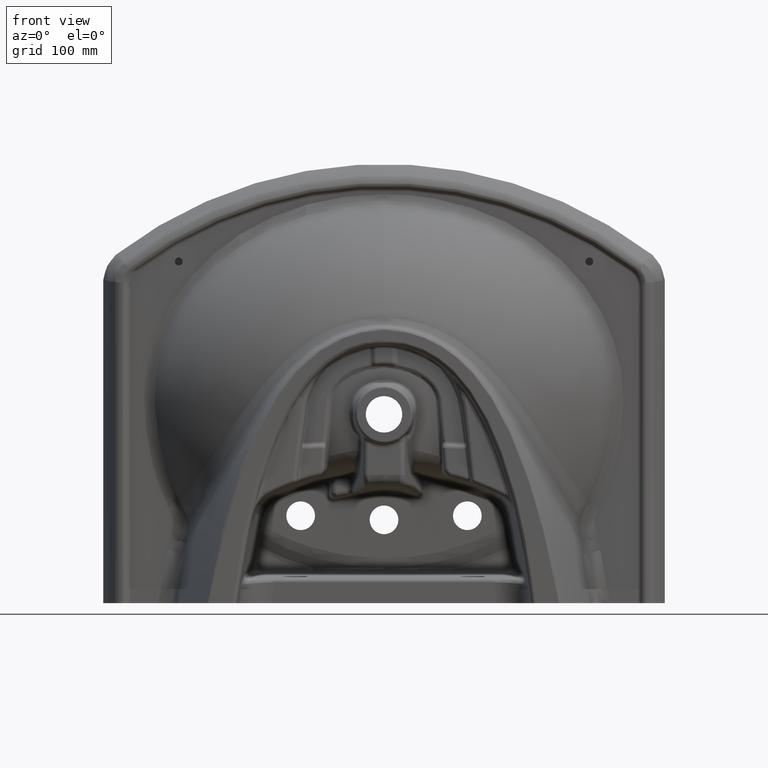
[diagram: clean part render]
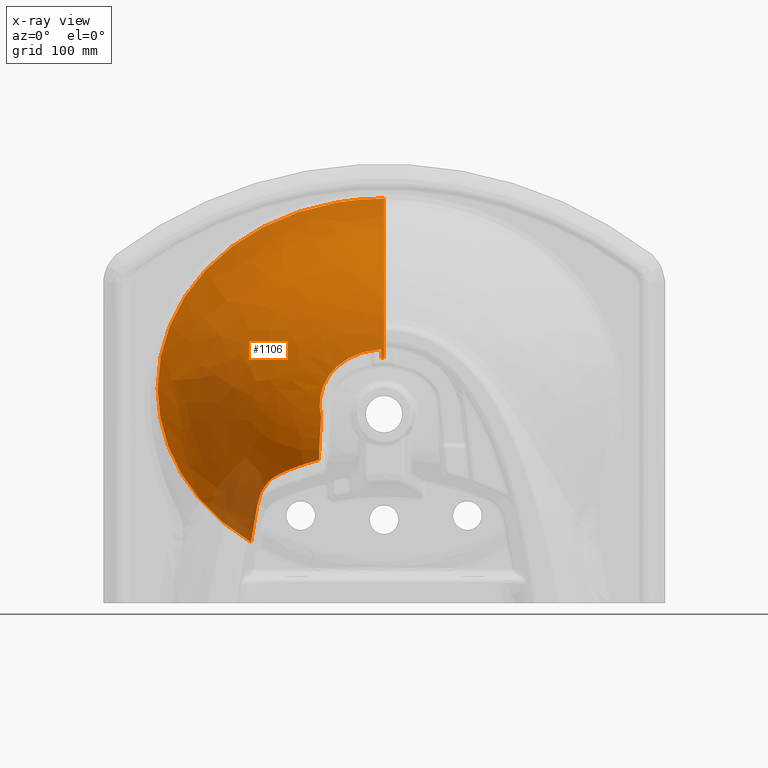
[diagram: x-ray — body ghosted, one internal face saturated and labeled with its STEP entity id]
A machine part, front view, then the same camera in x-ray: the body is ghosted and one INTERNAL B-rep face — a face not visible from any outside direction — is saturated and labeled: STEP entity #1106.
In plain terms, the highlighted face is a freeform B-spline surface patch.
Its self-contained STEP definition (entity closure, byte-faithful):
#449=(
BOUNDED_CURVE()
B_SPLINE_CURVE(3,(#10275,#10276,#10277,#10278,#10279,#10280,#10281,#10282,
#10283,#10284,#10285,#10286,#10287,#10288,#10289,#10290,#10291,#10292,#10293,
#10294,#10295,#10296,#10297,#10298,#10299,#10300,#10301,#10302,#10303,#10304,
#10305,#10306,#10307),.UNSPECIFIED.,.F.,.F.)
B_SPLINE_CURVE_WITH_KNOTS((4,1,1,1,1,1,1,1,1,1,1,1,1,1,1,1,1,1,1,1,1,1,
1,1,1,1,1,1,1,1,4),(0.,0.0224453555523785,0.0435125646434683,0.0628938435770593,
0.0821873906513526,0.101887499702686,0.121640100564984,0.141201082285744,
0.160545222206031,0.180564050673581,0.202498422622833,0.227579049221369,
0.256355493920582,0.288417060026703,0.323168919598192,0.3592852883435,0.395314984610934,
0.431073633900566,0.467039675850233,0.503575555244303,0.540922854239462,
0.57935046592357,0.619142605579174,0.660536857137993,0.703708934099004,
0.748781793215385,0.795818133369563,0.844769491808074,0.895478991219988,
0.947679556974255,1.),.UNSPECIFIED.)
CURVE()
GEOMETRIC_REPRESENTATION_ITEM()
RATIONAL_B_SPLINE_CURVE((1.00918384800764,1.00918384800764,1.00918384800764,
1.00918384800764,1.00918384800764,1.00918384800764,1.00918384800764,1.00918384800764,
1.00918384800764,1.00918384800764,1.00918384800764,1.00918384800764,1.00918384800764,
1.00918384800764,1.00918384800764,1.00918384800764,1.00918384800764,1.00918384800764,
1.00918384800764,1.00918384800764,1.00918384800764,1.00918384800764,1.00918384800764,
1.00918384800764,1.00918384800764,1.00918384800764,1.00918384800764,1.00918384800764,
1.00918384800764,1.00918384800764,1.00918384800764,1.00918384800764,1.00918384800764))
REPRESENTATION_ITEM('')
);
#1106=ADVANCED_FACE('',(#1644),#1564,.T.);
#1564=B_SPLINE_SURFACE_WITH_KNOTS('',3,3,((#10308,#10309,#10310,#10311,
#10312,#10313,#10314,#10315,#10316,#10317,#10318,#10319,#10320,#10321,#10322,
#10323,#10324,#10325),(#10326,#10327,#10328,#10329,#10330,#10331,#10332,
#10333,#10334,#10335,#10336,#10337,#10338,#10339,#10340,#10341,#10342,#10343),
(#10344,#10345,#10346,#10347,#10348,#10349,#10350,#10351,#10352,#10353,
#10354,#10355,#10356,#10357,#10358,#10359,#10360,#10361),(#10362,#10363,
#10364,#10365,#10366,#10367,#10368,#10369,#10370,#10371,#10372,#10373,#10374,
#10375,#10376,#10377,#10378,#10379),(#10380,#10381,#10382,#10383,#10384,
#10385,#10386,#10387,#10388,#10389,#10390,#10391,#10392,#10393,#10394,#10395,
#10396,#10397),(#10398,#10399,#10400,#10401,#10402,#10403,#10404,#10405,
#10406,#10407,#10408,#10409,#10410,#10411,#10412,#10413,#10414,#10415),
(#10416,#10417,#10418,#10419,#10420,#10421,#10422,#10423,#10424,#10425,
#10426,#10427,#10428,#10429,#10430,#10431,#10432,#10433),(#10434,#10435,
#10436,#10437,#10438,#10439,#10440,#10441,#10442,#10443,#10444,#10445,#10446,
#10447,#10448,#10449,#10450,#10451),(#10452,#10453,#10454,#10455,#10456,
#10457,#10458,#10459,#10460,#10461,#10462,#10463,#10464,#10465,#10466,#10467,
#10468,#10469),(#10470,#10471,#10472,#10473,#10474,#10475,#10476,#10477,
#10478,#10479,#10480,#10481,#10482,#10483,#10484,#10485,#10486,#10487),
(#10488,#10489,#10490,#10491,#10492,#10493,#10494,#10495,#10496,#10497,
#10498,#10499,#10500,#10501,#10502,#10503,#10504,#10505),(#10506,#10507,
#10508,#10509,#10510,#10511,#10512,#10513,#10514,#10515,#10516,#10517,#10518,
#10519,#10520,#10521,#10522,#10523),(#10524,#10525,#10526,#10527,#10528,
#10529,#10530,#10531,#10532,#10533,#10534,#10535,#10536,#10537,#10538,#10539,
#10540,#10541),(#10542,#10543,#10544,#10545,#10546,#10547,#10548,#10549,
#10550,#10551,#10552,#10553,#10554,#10555,#10556,#10557,#10558,#10559),
(#10560,#10561,#10562,#10563,#10564,#10565,#10566,#10567,#10568,#10569,
#10570,#10571,#10572,#10573,#10574,#10575,#10576,#10577),(#10578,#10579,
#10580,#10581,#10582,#10583,#10584,#10585,#10586,#10587,#10588,#10589,#10590,
#10591,#10592,#10593,#10594,#10595),(#10596,#10597,#10598,#10599,#10600,
#10601,#10602,#10603,#10604,#10605,#10606,#10607,#10608,#10609,#10610,#10611,
#10612,#10613),(#10614,#10615,#10616,#10617,#10618,#10619,#10620,#10621,
#10622,#10623,#10624,#10625,#10626,#10627,#10628,#10629,#10630,#10631),
(#10632,#10633,#10634,#10635,#10636,#10637,#10638,#10639,#10640,#10641,
#10642,#10643,#10644,#10645,#10646,#10647,#10648,#10649),(#10650,#10651,
#10652,#10653,#10654,#10655,#10656,#10657,#10658,#10659,#10660,#10661,#10662,
#10663,#10664,#10665,#10666,#10667),(#10668,#10669,#10670,#10671,#10672,
#10673,#10674,#10675,#10676,#10677,#10678,#10679,#10680,#10681,#10682,#10683,
#10684,#10685),(#10686,#10687,#10688,#10689,#10690,#10691,#10692,#10693,
#10694,#10695,#10696,#10697,#10698,#10699,#10700,#10701,#10702,#10703)),
 .UNSPECIFIED.,.F.,.F.,.F.,(4,3,1,1,1,1,1,1,1,1,1,1,1,1,1,1,1,4),(4,1,1,
1,1,1,1,1,1,1,1,1,3,4),(0.,0.0099009900990099,0.0703835199729311,0.14084845114113,
0.17608091672523,0.21131338230933,0.246545847893429,0.281778313477529,0.352243244645728,
0.422708175813928,0.563638038150326,0.634102969318525,0.704567900486725,
0.775032831654924,0.845497762823123,0.915962693991322,0.986427625159522,
1.),(0.,0.0457624312654866,0.128374279093757,0.210986126922155,0.293597974750426,
0.376209822578697,0.452945884502185,0.529681946425673,0.606418008349034,
0.683154070272522,0.75989013219601,0.836626194119498,0.99009900990099,1.),
 .UNSPECIFIED.);
#1644=FACE_OUTER_BOUND('',#2096,.T.);
#2096=EDGE_LOOP('',(#2679,#2680,#2681,#2682,#2683,#2684,#2685,#2686,#2687,
#2688));
#2679=ORIENTED_EDGE('',*,*,#5551,.F.);
#2680=ORIENTED_EDGE('',*,*,#5554,.F.);
#2681=ORIENTED_EDGE('',*,*,#5555,.F.);
#2682=ORIENTED_EDGE('',*,*,#5552,.F.);
#2683=ORIENTED_EDGE('',*,*,#5499,.F.);
#2684=ORIENTED_EDGE('',*,*,#5498,.F.);
#2685=ORIENTED_EDGE('',*,*,#5556,.F.);
#2686=ORIENTED_EDGE('',*,*,#5529,.F.);
#2687=ORIENTED_EDGE('',*,*,#5527,.T.);
#2688=ORIENTED_EDGE('',*,*,#5524,.F.);
#4835=VERTEX_POINT('',#8800);
#4836=VERTEX_POINT('',#8818);
#4837=VERTEX_POINT('',#8825);
#4856=VERTEX_POINT('',#9516);
#4857=VERTEX_POINT('',#9523);
#4859=VERTEX_POINT('',#9620);
#4860=VERTEX_POINT('',#9655);
#4876=VERTEX_POINT('',#10012);
#4877=VERTEX_POINT('',#10136);
#4878=VERTEX_POINT('',#10268);
#5498=EDGE_CURVE('',#4835,#4836,#6617,.T.);
#5499=EDGE_CURVE('',#4836,#4837,#6618,.T.);
#5524=EDGE_CURVE('',#4856,#4857,#6636,.T.);
#5527=EDGE_CURVE('',#4859,#4857,#6639,.T.);
#5529=EDGE_CURVE('',#4859,#4860,#6641,.T.);
#5551=EDGE_CURVE('',#4876,#4856,#6659,.T.);
#5552=EDGE_CURVE('',#4837,#4877,#6660,.T.);
#5554=EDGE_CURVE('',#4878,#4876,#6661,.T.);
#5555=EDGE_CURVE('',#4877,#4878,#6662,.T.);
#5556=EDGE_CURVE('',#4860,#4835,#449,.T.);
#6617=B_SPLINE_CURVE_WITH_KNOTS('',3,(#8801,#8802,#8803,#8804,#8805,#8806,
#8807,#8808,#8809,#8810,#8811,#8812,#8813,#8814,#8815,#8816,#8817),
 .UNSPECIFIED.,.F.,.F.,(4,1,1,1,1,1,1,1,1,1,1,1,1,1,4),(0.,0.06626125759983,
0.1447398810006,0.183979192701,0.2232185044013,0.2624578161017,0.3016971278021,
0.3801757512028,0.4586543746036,0.6156116214051,0.6940902448058,0.7725688682066,
0.8510474916073,0.9295261150081,1.),.UNSPECIFIED.);
#6618=B_SPLINE_CURVE_WITH_KNOTS('',3,(#8819,#8820,#8821,#8822,#8823,#8824),
 .UNSPECIFIED.,.F.,.F.,(4,1,1,4),(0.,0.07878736295344,0.8512203233028,1.),
 .UNSPECIFIED.);
#6636=B_SPLINE_CURVE_WITH_KNOTS('',3,(#9517,#9518,#9519,#9520,#9521,#9522),
 .UNSPECIFIED.,.F.,.F.,(4,2,4),(0.,0.5,1.),.UNSPECIFIED.);
#6639=B_SPLINE_CURVE_WITH_KNOTS('',3,(#9610,#9611,#9612,#9613,#9614,#9615,
#9616,#9617,#9618,#9619),.UNSPECIFIED.,.F.,.F.,(4,2,2,2,4),(0.,0.25,0.5,
0.75,1.),.UNSPECIFIED.);
#6641=B_SPLINE_CURVE_WITH_KNOTS('',3,(#9649,#9650,#9651,#9652,#9653,#9654),
 .UNSPECIFIED.,.F.,.F.,(4,2,4),(0.,0.5,1.),.UNSPECIFIED.);
#6659=B_SPLINE_CURVE_WITH_KNOTS('',3,(#10013,#10014,#10015,#10016,#10017,
#10018),.UNSPECIFIED.,.F.,.F.,(4,2,4),(0.,0.5,1.),.UNSPECIFIED.);
#6660=B_SPLINE_CURVE_WITH_KNOTS('',3,(#10131,#10132,#10133,#10134,#10135),
 .UNSPECIFIED.,.F.,.F.,(4,1,4),(0.,0.5,1.),.UNSPECIFIED.);
#6661=B_SPLINE_CURVE_WITH_KNOTS('',3,(#10250,#10251,#10252,#10253,#10254,
#10255,#10256,#10257,#10258,#10259,#10260,#10261,#10262,#10263,#10264,#10265,
#10266,#10267),.UNSPECIFIED.,.F.,.F.,(4,2,2,2,2,2,2,2,4),(0.,0.125,0.25,
0.375,0.5,0.625,0.75,0.875,1.),.UNSPECIFIED.);
#6662=B_SPLINE_CURVE_WITH_KNOTS('',3,(#10269,#10270,#10271,#10272,#10273,
#10274),.UNSPECIFIED.,.F.,.F.,(4,1,1,4),(0.,0.3333333333333,0.6666666666667,
1.),.UNSPECIFIED.);
#8800=CARTESIAN_POINT('',(-1.659208986797E-005,130.6653802685,262.7358670436));
#8801=CARTESIAN_POINT('',(-1.659208986797E-005,130.6653802685,262.7358670436));
#8802=CARTESIAN_POINT('',(-2.470335962262E-005,129.042875673,258.5267857115));
#8803=CARTESIAN_POINT('',(-9.88779640238E-005,125.0608289555,249.6466363962));
#8804=CARTESIAN_POINT('',(0.0002034277408838,118.3932649032,239.4747087305));
#8805=CARTESIAN_POINT('',(-0.0003798156166519,111.5495325419,231.5671773845));
#8806=CARTESIAN_POINT('',(-0.0003096595657815,105.8684464636,225.8721867835));
#8807=CARTESIAN_POINT('',(0.0001950060370218,99.78465637773,220.3846233359));
#8808=CARTESIAN_POINT('',(0.000178817769603,91.22886276585,213.1520775847));
#8809=CARTESIAN_POINT('',(-0.0001465671443302,80.1526193632,204.1135423997));
#8810=CARTESIAN_POINT('',(-6.01336365526E-005,62.35099727376,189.1507142445));
#8811=CARTESIAN_POINT('',(-0.0002748915375856,45.21427005388,172.6780082399));
#8812=CARTESIAN_POINT('',(0.000537819719387,30.17656589355,153.8966353832));
#8813=CARTESIAN_POINT('',(-0.000335909612927,20.30884618963,138.7763556676));
#8814=CARTESIAN_POINT('',(0.0001394730011211,11.88319170126,122.874379424));
#8815=CARTESIAN_POINT('',(-8.106863650903E-005,5.129822501405,106.8811538293));
#8816=CARTESIAN_POINT('',(-1.57048713111E-005,1.566268365264,96.11194840236));
#8817=CARTESIAN_POINT('',(1.91170853299E-010,0.06790658247132,90.96635394387));
#8818=CARTESIAN_POINT('',(1.91170853299E-010,0.06790658247132,90.96635394387));
#8819=CARTESIAN_POINT('',(1.91170853299E-010,0.06790658247132,90.96635394387));
#8820=CARTESIAN_POINT('',(1.923733423439E-006,-0.1022840446773,90.38189434316));
#8821=CARTESIAN_POINT('',(-0.0001522018276643,-1.914834169306,84.06048179684));
#8822=CARTESIAN_POINT('',(-8.202024179728E-005,-3.713217669299,76.54794449358));
#8823=CARTESIAN_POINT('',(2.715194940629E-006,-5.050072346061,69.57237891233));
#8824=CARTESIAN_POINT('',(-1.30809627401E-009,-5.257719081294,68.44450538905));
#8825=CARTESIAN_POINT('',(-1.30809627401E-009,-5.257719081294,68.44450538905));
#9516=CARTESIAN_POINT('',(-79.3482827124211,9.09678023882751,-55.6839221066214));
#9517=CARTESIAN_POINT('',(-79.3482827124222,9.09678023882702,-55.6839221066228));
#9518=CARTESIAN_POINT('',(-89.2093828615462,13.4860889650566,-58.1681888118412));
#9519=CARTESIAN_POINT('',(-98.5384070707618,18.7737260397105,-61.0642304720026));
#9520=CARTESIAN_POINT('',(-115.541911162869,31.4260132950011,-67.341739408618));
#9521=CARTESIAN_POINT('',(-123.1687227535,38.7894883518502,-70.6960730507997));
#9522=CARTESIAN_POINT('',(-130.033665209822,46.7633526673073,-74.1538473458196));
#9523=CARTESIAN_POINT('',(-130.0335701322,46.76336607033,-74.15400520127));
#9610=CARTESIAN_POINT('',(-154.356200766736,101.19870151657,-110.330269822768));
#9611=CARTESIAN_POINT('',(-153.668040521804,97.0520233348898,-106.140960193809));
#9612=CARTESIAN_POINT('',(-152.626080289454,92.6385575410309,-102.351426527176));
#9613=CARTESIAN_POINT('',(-149.95047582489,83.5007045955428,-95.2863707693842));
#9614=CARTESIAN_POINT('',(-148.332475147865,78.8448733633003,-92.0644753949828));
#9615=CARTESIAN_POINT('',(-144.466328481615,69.5140732165542,-86.0839609843127));
#9616=CARTESIAN_POINT('',(-142.21908659875,64.8359408521899,-83.3236613316301));
#9617=CARTESIAN_POINT('',(-136.825889462649,55.5662511574021,-78.2692632096507));
#9618=CARTESIAN_POINT('',(-133.719087895569,51.0446891571457,-76.0107940678579));
#9619=CARTESIAN_POINT('',(-130.033313120421,46.7634766888552,-74.1542603574891));
#9620=CARTESIAN_POINT('',(-154.3561735357,101.1987009008,-110.3302749054));
#9649=CARTESIAN_POINT('',(-154.356165059044,101.198692450516,-110.330284661955));
#9650=CARTESIAN_POINT('',(-155.428535324435,107.660943722107,-116.859020886721));
#9651=CARTESIAN_POINT('',(-156.587676613308,113.514548409138,-123.802816176579));
#9652=CARTESIAN_POINT('',(-159.181441917756,123.362801940103,-138.956325777424));
#9653=CARTESIAN_POINT('',(-160.617926054057,127.394728333829,-147.214750129755));
#9654=CARTESIAN_POINT('',(-162.071314745248,130.640806660665,-155.77887871337));
#9655=CARTESIAN_POINT('',(-162.0713146672,130.6408070145,-155.7788785925));
#10012=CARTESIAN_POINT('',(-76.5780264958371,-3.00000000000044,-3.00802986264722));
#10013=CARTESIAN_POINT('',(-76.5780264958341,-3.00000000000088,-3.00802986264745));
#10014=CARTESIAN_POINT('',(-77.1828887211942,-2.40686861522558,-12.0469107681059));
#10015=CARTESIAN_POINT('',(-77.7412084088048,-1.3255881754838,-21.0184234763921));
#10016=CARTESIAN_POINT('',(-78.6931466992544,2.51111429458672,-38.7307103961823));
#10017=CARTESIAN_POINT('',(-79.0819632459886,5.29002550751136,-47.4307288251266));
#10018=CARTESIAN_POINT('',(-79.3482827124202,9.09678023882637,-55.6839221066207));
#10131=CARTESIAN_POINT('',(-1.30809627401E-009,-5.257719081294,68.44450538905));
#10132=CARTESIAN_POINT('',(-0.5911161868136,-5.257719283368,68.44450537529));
#10133=CARTESIAN_POINT('',(-1.76572891103,-5.257108371321,68.43386285036));
#10134=CARTESIAN_POINT('',(-2.924602866872,-5.255319122577,68.40282079469));
#10135=CARTESIAN_POINT('',(-3.5,-5.254141092446,68.38241786968));
#10136=CARTESIAN_POINT('',(-3.5,-5.254141092446,68.38241786968));
#10250=CARTESIAN_POINT('',(-3.50000000000001,-3.,79.1975177651103));
#10251=CARTESIAN_POINT('',(-8.80069562477562,-3.,79.0000454960502));
#10252=CARTESIAN_POINT('',(-14.0134217637288,-3.,78.3613561080205));
#10253=CARTESIAN_POINT('',(-24.263387630636,-3.,76.2038129436455));
#10254=CARTESIAN_POINT('',(-29.3362015126819,-3.,74.6700877676033));
#10255=CARTESIAN_POINT('',(-39.1217289607941,-3.,70.6719269858311));
#10256=CARTESIAN_POINT('',(-43.7571901426023,-3.,68.2481743342429));
#10257=CARTESIAN_POINT('',(-52.4824085793771,-3.,62.4999965454353));
#10258=CARTESIAN_POINT('',(-56.6203194177634,-3.,59.1243521124266));
#10259=CARTESIAN_POINT('',(-63.9788561149344,-3.,51.5545430415473));
#10260=CARTESIAN_POINT('',(-67.1879105906319,-3.,47.3985043127773));
#10261=CARTESIAN_POINT('',(-72.5660612833534,-3.,38.2656002236035));
#10262=CARTESIAN_POINT('',(-74.6586833660894,-3.,33.3841822936914));
#10263=CARTESIAN_POINT('',(-77.5071107358836,-3.,23.2900637077857));
#10264=CARTESIAN_POINT('',(-78.2783838052408,-3.,17.9589436020812));
#10265=CARTESIAN_POINT('',(-78.4258214289351,-3.,7.43692671323359));
#10266=CARTESIAN_POINT('',(-77.8231996892363,-3.,2.17029123779397));
#10267=CARTESIAN_POINT('',(-76.5780264958384,-3.,-3.00802986264663));
#10268=CARTESIAN_POINT('',(-3.5,-3.,79.1975177651102));
#10269=CARTESIAN_POINT('',(-3.5,-5.254141092446,68.38241786968));
#10270=CARTESIAN_POINT('',(-3.5,-5.029587272368,69.60380996771));
#10271=CARTESIAN_POINT('',(-3.5,-4.562981987464,72.03341680586));
#10272=CARTESIAN_POINT('',(-3.5,-3.811076186263,75.63902313759));
#10273=CARTESIAN_POINT('',(-3.5,-3.275933035941,78.01576292861));
#10274=CARTESIAN_POINT('',(-3.5,-3.,79.19751776511));
#10275=CARTESIAN_POINT('',(-162.071314571395,130.640807479827,-155.778878432385));
#10276=CARTESIAN_POINT('',(-166.110661286006,130.640376628328,-153.360683175668));
#10277=CARTESIAN_POINT('',(-173.821575884865,130.639710845347,-148.471082917638));
#10278=CARTESIAN_POINT('',(-184.586734811714,130.639270085994,-140.84348995338));
#10279=CARTESIAN_POINT('',(-194.443722928448,130.639322026444,-133.10694149425));
#10280=CARTESIAN_POINT('',(-203.69983796731,130.639819231715,-125.094406935406));
#10281=CARTESIAN_POINT('',(-212.601650563905,130.640763140698,-116.57849127944));
#10282=CARTESIAN_POINT('',(-221.08897622892,130.6421497847,-107.574078949767));
#10283=CARTESIAN_POINT('',(-229.039099200577,130.64386900563,-98.1911318073964));
#10284=CARTESIAN_POINT('',(-236.510261162646,130.64587680641,-88.353693579011));
#10285=CARTESIAN_POINT('',(-243.70526303082,130.648252794598,-77.7072201860032));
#10286=CARTESIAN_POINT('',(-250.856969691469,130.651178909351,-65.6110134089731));
#10287=CARTESIAN_POINT('',(-257.972837744621,130.654611941472,-51.4026762426755));
#10288=CARTESIAN_POINT('',(-264.71581297396,130.658459816809,-34.6926671302472));
#10289=CARTESIAN_POINT('',(-270.456497854578,130.662785978846,-15.4794957087504));
#10290=CARTESIAN_POINT('',(-274.446246371423,130.66689840683,5.74858625504667));
#10291=CARTESIAN_POINT('',(-276.14054322641,130.670744182536,28.1212107732517));
#10292=CARTESIAN_POINT('',(-275.289295438845,130.67425986327,50.7530519880797));
#10293=CARTESIAN_POINT('',(-271.928745661713,130.6771346229,73.1192353263209));
#10294=CARTESIAN_POINT('',(-266.050155749439,130.679085578523,95.0686918974495));
#10295=CARTESIAN_POINT('',(-257.645232878155,130.679958373142,116.543700956477));
#10296=CARTESIAN_POINT('',(-246.664898953715,130.679759778452,137.409756125091));
#10297=CARTESIAN_POINT('',(-233.067369870304,130.678668254702,157.511465093455));
#10298=CARTESIAN_POINT('',(-216.819180714155,130.67681672987,176.670621425694));
#10299=CARTESIAN_POINT('',(-197.875620545233,130.674538776318,194.66015410911));
#10300=CARTESIAN_POINT('',(-176.251691033881,130.672060778944,211.222181547789));
#10301=CARTESIAN_POINT('',(-151.999306777114,130.669748427737,226.056522987846));
#10302=CARTESIAN_POINT('',(-125.250235578909,130.667795171722,238.844281698465));
#10303=CARTESIAN_POINT('',(-96.2229430513653,130.666424900939,249.257308956669));
#10304=CARTESIAN_POINT('',(-65.2405328017995,130.665650117864,256.973261873171));
#10305=CARTESIAN_POINT('',(-32.9443082319016,130.66539947884,261.687121007875));
#10306=CARTESIAN_POINT('',(-10.9862631844415,130.665400617714,262.735817600879));
#10307=CARTESIAN_POINT('',(-1.65920812038109E-005,130.665380126892,262.735864964023));
#10308=CARTESIAN_POINT('',(-163.89767866805,131.592448064589,-157.486441480347));
#10309=CARTESIAN_POINT('',(-171.780858405789,131.594287349828,-152.743875810325));
#10310=CARTESIAN_POINT('',(-193.252786827314,131.598129912987,-138.321806521346));
#10311=CARTESIAN_POINT('',(-224.920009732109,131.596735721001,-109.427021688986));
#10312=CARTESIAN_POINT('',(-254.41879163488,131.584981030123,-67.8998720459096));
#10313=CARTESIAN_POINT('',(-273.590390802507,131.569033238481,-20.0724618466413));
#10314=CARTESIAN_POINT('',(-280.169201629384,131.555894190934,30.5982339296123));
#10315=CARTESIAN_POINT('',(-274.135903950157,131.544693965504,80.9692400010438));
#10316=CARTESIAN_POINT('',(-256.353982398902,131.540594317656,127.916483543371));
#10317=CARTESIAN_POINT('',(-227.810225847772,131.543098224249,169.921891354147));
#10318=CARTESIAN_POINT('',(-190.71168775948,131.548199604634,204.9937666496));
#10319=CARTESIAN_POINT('',(-147.397619191371,131.552339741835,232.234791102506));
#10320=CARTESIAN_POINT('',(-84.1924950258669,131.554522940195,257.798955990501));
#10321=CARTESIAN_POINT('',(-33.4514522805871,131.552780954415,265.0500147357));
#10322=CARTESIAN_POINT('',(0.000450648702428213,131.552721363469,265.049317668358));
#10323=CARTESIAN_POINT('',(2.15853289935647,131.552717519079,265.04927269846));
#10324=CARTESIAN_POINT('',(4.31661515001051,131.552713674689,265.049227728562));
#10325=CARTESIAN_POINT('',(6.47469740066455,131.552709830299,265.049182758665));
#10326=CARTESIAN_POINT('',(-163.454008598566,131.36174299736,-157.071687694831));
#10327=CARTESIAN_POINT('',(-171.316366756759,131.361435009752,-152.34287110325));
#10328=CARTESIAN_POINT('',(-192.73173128451,131.358912797192,-137.961972643764));
#10329=CARTESIAN_POINT('',(-224.315951108639,131.346012993201,-109.146813054357));
#10330=CARTESIAN_POINT('',(-253.737518211053,131.320727943582,-67.7307401363631));
#10331=CARTESIAN_POINT('',(-272.858506910405,131.292915119087,-20.0288931045542));
#10332=CARTESIAN_POINT('',(-279.419214365956,131.271522078589,30.5099443505782));
#10333=CARTESIAN_POINT('',(-273.400637472404,131.256903449769,80.7504320804992));
#10334=CARTESIAN_POINT('',(-255.664512302268,131.253002532804,127.576335943148));
#10335=CARTESIAN_POINT('',(-227.195422429015,131.258299340866,169.473141560765));
#10336=CARTESIAN_POINT('',(-190.194919389287,131.267749136389,204.4542192048));
#10337=CARTESIAN_POINT('',(-146.996301992947,131.276733172023,231.62435663217));
#10338=CARTESIAN_POINT('',(-83.9611494807446,131.284651483763,257.121110810267));
#10339=CARTESIAN_POINT('',(-33.3586075259047,131.284877150743,264.351172130167));
#10340=CARTESIAN_POINT('',(0.000450725833141675,131.283813603646,264.348063148205));
#10341=CARTESIAN_POINT('',(2.15254328881185,131.283744991044,264.347862578486));
#10342=CARTESIAN_POINT('',(4.30463585179056,131.283676378442,264.347662008766));
#10343=CARTESIAN_POINT('',(6.45672841476927,131.283607765839,264.347461439047));
#10344=CARTESIAN_POINT('',(-163.010338529083,131.13103793013,-156.656933909316));
#10345=CARTESIAN_POINT('',(-170.85187510773,131.128582669676,-151.941866396175));
#10346=CARTESIAN_POINT('',(-192.210675741705,131.119695681396,-137.602138766182));
#10347=CARTESIAN_POINT('',(-223.71189248517,131.0952902654,-108.866604419729));
#10348=CARTESIAN_POINT('',(-253.056244787227,131.056474857041,-67.5616082268165));
#10349=CARTESIAN_POINT('',(-272.126623018302,131.016796999694,-19.9853243624671));
#10350=CARTESIAN_POINT('',(-278.669227102528,130.987149966245,30.4216547715441));
#10351=CARTESIAN_POINT('',(-272.665370994652,130.969112934035,80.5316241599546));
#10352=CARTESIAN_POINT('',(-254.975042205634,130.965410747952,127.236188342924));
#10353=CARTESIAN_POINT('',(-226.580619010257,130.973500457483,169.024391767382));
#10354=CARTESIAN_POINT('',(-189.678151019093,130.987298668145,203.91467176));
#10355=CARTESIAN_POINT('',(-146.594984794524,131.001126602212,231.013922161835));
#10356=CARTESIAN_POINT('',(-83.7298039356223,131.014780027332,256.443265630034));
#10357=CARTESIAN_POINT('',(-33.2657627712224,131.016973347072,263.652329524633));
#10358=CARTESIAN_POINT('',(0.000450802963855138,131.014905843823,263.646808628053));
#10359=CARTESIAN_POINT('',(2.14655367826723,131.014772463008,263.646452458512));
#10360=CARTESIAN_POINT('',(4.29265655357061,131.014639082194,263.64609628897));
#10361=CARTESIAN_POINT('',(6.43875942887399,131.014505701379,263.645740119429));
#10362=CARTESIAN_POINT('',(-162.5666684596,130.9003328629,-156.2421801238));
#10363=CARTESIAN_POINT('',(-170.3873834587,130.8957303296,-151.5408616891));
#10364=CARTESIAN_POINT('',(-191.6896201989,130.8804785656,-137.2423048886));
#10365=CARTESIAN_POINT('',(-223.1078338617,130.8445675376,-108.5863957851));
#10366=CARTESIAN_POINT('',(-252.3749713634,130.7922217705,-67.39247631727));
#10367=CARTESIAN_POINT('',(-271.3947391262,130.7406788803,-19.94175562038));
#10368=CARTESIAN_POINT('',(-277.9192398391,130.7027778539,30.33336519251));
#10369=CARTESIAN_POINT('',(-271.9301045169,130.6813224183,80.31281623941));
#10370=CARTESIAN_POINT('',(-254.285572109,130.6778189631,126.8960407427));
#10371=CARTESIAN_POINT('',(-225.9658155915,130.6887015741,168.575641974));
#10372=CARTESIAN_POINT('',(-189.1613826489,130.7068481999,203.3751243152));
#10373=CARTESIAN_POINT('',(-146.1936675961,130.7255200324,230.4034876915));
#10374=CARTESIAN_POINT('',(-83.4984583905,130.7449085709,255.7654204498));
#10375=CARTESIAN_POINT('',(-33.17291801654,130.7490695434,262.9534869191));
#10376=CARTESIAN_POINT('',(0.0004508800945686,130.745998084,262.9455541079));
#10377=CARTESIAN_POINT('',(2.14056406772262,130.745799934973,262.945042338537));
#10378=CARTESIAN_POINT('',(4.28067725535067,130.745601785946,262.944530569174));
#10379=CARTESIAN_POINT('',(6.42079044297871,130.745403636919,262.944018799812));
#10380=CARTESIAN_POINT('',(-159.8564053482,129.4910166247,-153.7085589433));
#10381=CARTESIAN_POINT('',(-167.5499268248,129.4732969695,-149.0912299924));
#10382=CARTESIAN_POINT('',(-188.5066296981,129.419164474,-135.0441749003));
#10383=CARTESIAN_POINT('',(-219.417799494,129.3129687053,-106.8746753465));
#10384=CARTESIAN_POINT('',(-248.2132522023,129.1779695552,-66.35929421432));
#10385=CARTESIAN_POINT('',(-266.923854,129.0539463174,-19.67560569815));
#10386=CARTESIAN_POINT('',(-273.3377660055,128.9656238311,29.79402750526));
#10387=CARTESIAN_POINT('',(-267.4385560696,128.9232862733,78.97617652372));
#10388=CARTESIAN_POINT('',(-250.0737816416,128.9209968125,124.8181690161));
#10389=CARTESIAN_POINT('',(-222.2101441112,128.9489405199,165.8343481728));
#10390=CARTESIAN_POINT('',(-186.0045813517,128.9936504637,200.0791716759));
#10391=CARTESIAN_POINT('',(-143.7421269724,129.0419123906,226.6745049616));
#10392=CARTESIAN_POINT('',(-82.08522964225,129.0963352199,251.6246435221));
#10393=CARTESIAN_POINT('',(-32.60575396602,129.1125160627,258.6844422737));
#10394=CARTESIAN_POINT('',(0.0004513512656974,129.1033117007,258.661775714));
#10395=CARTESIAN_POINT('',(2.10397512105413,129.102717899794,258.66031342648));
#10396=CARTESIAN_POINT('',(4.20749889084255,129.102124098888,258.65885113896));
#10397=CARTESIAN_POINT('',(6.31102266063098,129.101530297983,258.65738885144));
#10398=CARTESIAN_POINT('',(-154.1103547966,126.1276149921,-148.2932276373));
#10399=CARTESIAN_POINT('',(-161.5349193327,126.0809097527,-143.8565640152));
#10400=CARTESIAN_POINT('',(-181.76151641,125.9405510821,-130.3508310338));
#10401=CARTESIAN_POINT('',(-211.603950587,125.6766014953,-103.2276777109));
#10402=CARTESIAN_POINT('',(-239.4086753822,125.3521954073,-64.1666010196));
#10403=CARTESIAN_POINT('',(-257.4729080804,125.0570989557,-19.11947770298));
#10404=CARTESIAN_POINT('',(-263.6592577728,124.8430906682,28.63819512945));
#10405=CARTESIAN_POINT('',(-257.9554604842,124.7376783261,76.13243384637));
#10406=CARTESIAN_POINT('',(-241.18635573,124.7207428481,120.4114891837));
#10407=CARTESIAN_POINT('',(-214.2901870057,124.769829825,160.0346352899));
#10408=CARTESIAN_POINT('',(-179.3523611404,124.8585405372,193.1214430147));
#10409=CARTESIAN_POINT('',(-138.5803351618,124.9601907083,218.8203366203));
#10410=CARTESIAN_POINT('',(-79.11387566111,125.0806356181,242.9299762826));
#10411=CARTESIAN_POINT('',(-31.41437353152,125.1210684874,249.7444553157));
#10412=CARTESIAN_POINT('',(0.0004921013336995,125.1006833314,249.7074368761));
#10413=CARTESIAN_POINT('',(2.0271589869889,125.099368224052,249.705048705908));
#10414=CARTESIAN_POINT('',(4.05382587264409,125.098053116704,249.702660535716));
#10415=CARTESIAN_POINT('',(6.08049275829929,125.096738009357,249.700272365523));
#10416=CARTESIAN_POINT('',(-147.3618357738,120.8587888009,-141.653094842));
#10417=CARTESIAN_POINT('',(-154.4703771555,120.7673739425,-137.4402713767));
#10418=CARTESIAN_POINT('',(-173.839626856,120.494265522,-124.6067392414));
#10419=CARTESIAN_POINT('',(-202.4300057976,119.9849628768,-98.78292504357));
#10420=CARTESIAN_POINT('',(-229.0761794988,119.3528567211,-61.51232516558));
#10421=CARTESIAN_POINT('',(-246.3823614432,118.7582675578,-18.45733173182));
#10422=CARTESIAN_POINT('',(-252.2959657059,118.2929487635,27.23644671516));
#10423=CARTESIAN_POINT('',(-246.8160886546,118.0121738818,72.71620502175));
#10424=CARTESIAN_POINT('',(-230.7463554255,117.8879494026,115.1480131254));
#10425=CARTESIAN_POINT('',(-204.9936292996,117.8868578951,153.1436406156));
#10426=CARTESIAN_POINT('',(-171.55692689,117.9715390035,184.9020235338));
#10427=CARTESIAN_POINT('',(-132.5472576137,118.1024822325,209.6033281265));
#10428=CARTESIAN_POINT('',(-75.66056867385,118.2885793025,232.8282979828));
#10429=CARTESIAN_POINT('',(-30.03784366205,118.3875745945,239.457611301));
#10430=CARTESIAN_POINT('',(0.0001791063236158,118.3932649313,239.4747089646));
#10431=CARTESIAN_POINT('',(1.93802174320424,118.393632031936,239.475811985986));
#10432=CARTESIAN_POINT('',(3.87586438008486,118.393999132572,239.476915007373));
#10433=CARTESIAN_POINT('',(5.81370701696548,118.394366233209,239.478018028759));
#10434=CARTESIAN_POINT('',(-142.1569718058,115.5856739828,-136.1572790967));
#10435=CARTESIAN_POINT('',(-149.0176307474,115.4471660952,-132.1271571129));
#10436=CARTESIAN_POINT('',(-167.7127181813,115.0363631575,-119.8447445593));
#10437=CARTESIAN_POINT('',(-195.311820419,114.2792458661,-95.09347647542));
#10438=CARTESIAN_POINT('',(-221.0312865715,113.3368948603,-59.30063035814));
#10439=CARTESIAN_POINT('',(-237.7194151539,112.4323046069,-17.88118845961));
#10440=CARTESIAN_POINT('',(-243.3934740519,111.691758566,26.13061077997));
#10441=CARTESIAN_POINT('',(-238.0693468636,111.1971491802,69.98607485589));
#10442=CARTESIAN_POINT('',(-222.5405362926,110.9215089761,110.9424290928));
#10443=CARTESIAN_POINT('',(-197.6902310457,110.8265696422,147.6536685395));
#10444=CARTESIAN_POINT('',(-165.4454679552,110.8712154258,178.3830555626));
#10445=CARTESIAN_POINT('',(-127.8344360451,111.0102499759,202.334226352));
#10446=CARTESIAN_POINT('',(-72.98506470134,111.2625732135,224.9283040541));
#10447=CARTESIAN_POINT('',(-28.98140359288,111.4628251118,231.4727815906));
#10448=CARTESIAN_POINT('',(0.0007477418171966,111.5495336515,231.5671785806));
#10449=CARTESIAN_POINT('',(1.87047295635547,111.555127478581,231.573268412591));
#10450=CARTESIAN_POINT('',(3.74019817089374,111.560721305661,231.579358244583));
#10451=CARTESIAN_POINT('',(5.60992338543201,111.566315132742,231.585448076574));
#10452=CARTESIAN_POINT('',(-138.4970768427,111.2169227586,-132.0852625694));
#10453=CARTESIAN_POINT('',(-145.1798811301,111.0380724563,-128.1864715031));
#10454=CARTESIAN_POINT('',(-163.3896685288,110.5107184053,-116.30229939));
#10455=CARTESIAN_POINT('',(-190.2687015584,109.5494946393,-92.33482043508));
#10456=CARTESIAN_POINT('',(-215.3075294565,108.3569138365,-57.63113986047));
#10457=CARTESIAN_POINT('',(-231.5349245172,107.2033992195,-17.4213955043));
#10458=CARTESIAN_POINT('',(-237.0212611374,106.238582443,25.34681425556));
#10459=CARTESIAN_POINT('',(-231.7966663873,105.5626635539,68.00514657995));
#10460=CARTESIAN_POINT('',(-216.6498006445,105.1512077234,107.8765225934));
#10461=CARTESIAN_POINT('',(-192.4474667483,104.9639471773,143.646777615));
#10462=CARTESIAN_POINT('',(-161.0634505362,104.9599298041,173.6276854241));
#10463=CARTESIAN_POINT('',(-124.4633059344,105.0932640084,197.0407799446));
#10464=CARTESIAN_POINT('',(-71.08275543343,105.3939276784,219.1958041743));
#10465=CARTESIAN_POINT('',(-28.23673383764,105.6915743662,225.7031615845));
#10466=CARTESIAN_POINT('',(0.0006683667675324,105.8684487079,225.8721889315));
#10467=CARTESIAN_POINT('',(1.82234758874552,105.879859400387,225.883093390903));
#10468=CARTESIAN_POINT('',(3.6440268107235,105.891270092873,225.893997850305));
#10469=CARTESIAN_POINT('',(5.46570603270148,105.90268078536,225.904902309708));
#10470=CARTESIAN_POINT('',(-135.0733698818,106.425796133,-128.0584313399));
#10471=CARTESIAN_POINT('',(-141.5856705133,106.2019481731,-124.2843858474));
#10472=CARTESIAN_POINT('',(-159.3284280222,105.5463861734,-112.7809785462));
#10473=CARTESIAN_POINT('',(-185.5072951514,104.3682805318,-89.57383122303));
#10474=CARTESIAN_POINT('',(-209.8769096154,102.9192539638,-55.9398493793));
#10475=CARTESIAN_POINT('',(-225.6465186561,101.5169167481,-16.92611542233));
#10476=CARTESIAN_POINT('',(-230.9416268332,100.330214276,24.61083560459));
#10477=CARTESIAN_POINT('',(-225.8069747799,99.47366927118,66.08694753658));
#10478=CARTESIAN_POINT('',(-211.0266858292,98.92521808732,104.8904525315));
#10479=CARTESIAN_POINT('',(-187.4502562916,98.64352622759,139.7397276521));
#10480=CARTESIAN_POINT('',(-156.897273945,98.58964584547,168.9944243871));
#10481=CARTESIAN_POINT('',(-121.2697052293,98.7192936682,191.8928280767));
#10482=CARTESIAN_POINT('',(-69.29429673414,99.07868738802,213.639558751));
#10483=CARTESIAN_POINT('',(-27.54283110524,99.4943605214,220.130168041));
#10484=CARTESIAN_POINT('',(0.0001548169799298,99.78466006552,220.3846265678));
#10485=CARTESIAN_POINT('',(1.77703516888102,99.8033881568595,220.401042447978));
#10486=CARTESIAN_POINT('',(3.5539155207821,99.8221162481989,220.417458328156));
#10487=CARTESIAN_POINT('',(5.33079587268319,99.8408443395384,220.433874208334));
#10488=CARTESIAN_POINT('',(-130.7331456194,99.51251106277,-122.7554208243));
#10489=CARTESIAN_POINT('',(-137.0232567144,99.22274255106,-119.1369365971));
#10490=CARTESIAN_POINT('',(-154.1546816438,98.38146074748,-108.1122067976));
#10491=CARTESIAN_POINT('',(-179.4057872293,96.8989779103,-85.8796180778));
#10492=CARTESIAN_POINT('',(-202.8776120262,95.10571024613,-53.64389290265));
#10493=CARTESIAN_POINT('',(-218.0279220058,93.38379081965,-16.21481279888));
#10494=CARTESIAN_POINT('',(-223.0617958472,91.92125462386,23.67956680835));
#10495=CARTESIAN_POINT('',(-218.0417020254,90.84183862993,63.57472087493));
#10496=CARTESIAN_POINT('',(-203.7426020222,90.12299932514,100.9496464447));
#10497=CARTESIAN_POINT('',(-180.987656774,89.72201220578,134.5688740846));
#10498=CARTESIAN_POINT('',(-151.5219243052,89.60450978676,162.8564304492));
#10499=CARTESIAN_POINT('',(-117.1614589064,89.73148739306,185.0730564168));
#10500=CARTESIAN_POINT('',(-67.00739335929,90.17637076621,206.2862535567));
#10501=CARTESIAN_POINT('',(-26.66127414877,90.76581442741,212.7692470365));
#10502=CARTESIAN_POINT('',(0.000159829441261,91.2288686471,213.1520824481));
#10503=CARTESIAN_POINT('',(1.7201686303452,91.2587416589498,213.176780304854));
#10504=CARTESIAN_POINT('',(3.44017743124914,91.2886146707995,213.201478161608));
#10505=CARTESIAN_POINT('',(5.16018623215308,91.3184876826493,213.226176018362));
#10506=CARTESIAN_POINT('',(-125.5850480447,89.99556599112,-116.3030140714));
#10507=CARTESIAN_POINT('',(-131.6030990139,89.61940907532,-112.8595784995));
#10508=CARTESIAN_POINT('',(-147.9821980699,88.53881847126,-102.3796719064));
#10509=CARTESIAN_POINT('',(-172.0755335517,86.68187081115,-81.28691985838));
#10510=CARTESIAN_POINT('',(-194.410224541,84.49211503196,-50.73468160407));
#10511=CARTESIAN_POINT('',(-208.7686527162,82.42961873964,-15.256844333));
#10512=CARTESIAN_POINT('',(-213.4680519668,80.69567533723,22.58400819348));
#10513=CARTESIAN_POINT('',(-208.591892084,79.4082360244,60.48229036315));
#10514=CARTESIAN_POINT('',(-194.897264548,78.53795366957,96.04461374643));
#10515=CARTESIAN_POINT('',(-173.1656474284,78.03946908483,128.1024189218));
#10516=CARTESIAN_POINT('',(-145.0417376139,77.88429033078,155.163225666));
#10517=CARTESIAN_POINT('',(-112.2309678206,78.04154288309,176.5167576685));
#10518=CARTESIAN_POINT('',(-64.28488084126,78.62990110336,197.0597580177));
#10519=CARTESIAN_POINT('',(-25.61931334714,79.45815862108,203.5473082987));
#10520=CARTESIAN_POINT('',(0.000471971828458,80.15262818303,204.1135495883));
#10521=CARTESIAN_POINT('',(1.65328090408274,80.1974304903436,204.150079506471));
#10522=CARTESIAN_POINT('',(3.30608983633701,80.2422327976573,204.186609424642));
#10523=CARTESIAN_POINT('',(4.95889876859129,80.2870351049709,204.223139342813));
#10524=CARTESIAN_POINT('',(-117.2308832156,73.67470358182,-106.5546135073));
#10525=CARTESIAN_POINT('',(-122.8014823021,73.17397641244,-103.3556184429));
#10526=CARTESIAN_POINT('',(-137.9399092795,71.7541235236,-93.64410855227));
#10527=CARTESIAN_POINT('',(-160.1072504166,69.39184870405,-74.20347878253));
#10528=CARTESIAN_POINT('',(-180.5289799436,66.70741071405,-46.18121993769));
#10529=CARTESIAN_POINT('',(-193.5470817521,64.26458474661,-13.73251261085));
#10530=CARTESIAN_POINT('',(-197.6875200359,62.26827965256,20.83787433562));
#10531=CARTESIAN_POINT('',(-193.0641600927,60.80181499863,55.48843831278));
#10532=CARTESIAN_POINT('',(-180.389586254,59.81737921553,88.06500941294));
#10533=CARTESIAN_POINT('',(-160.3619550573,59.26280847566,117.5279809827));
#10534=CARTESIAN_POINT('',(-134.4518749152,59.11555921475,142.5298181326));
#10535=CARTESIAN_POINT('',(-104.1822435644,59.35650651015,162.4148725027));
#10536=CARTESIAN_POINT('',(-59.8437498056,60.17720583434,181.7935196543));
#10537=CARTESIAN_POINT('',(-23.91797644668,61.34003531993,188.2655594626));
#10538=CARTESIAN_POINT('',(0.0003639416640479,62.35101012004,189.1507255065));
#10539=CARTESIAN_POINT('',(1.5434075755732,62.4162311263483,189.207830213884));
#10540=CARTESIAN_POINT('',(3.08645120948234,62.4814521326566,189.264934921268));
#10541=CARTESIAN_POINT('',(4.62949484339149,62.5466731389649,189.322039628653));
#10542=CARTESIAN_POINT('',(-107.992972927,56.69760059656,-97.68984448352));
#10543=CARTESIAN_POINT('',(-113.0760230619,56.11607646138,-94.69212659297));
#10544=CARTESIAN_POINT('',(-126.8641720853,54.4844854055,-85.62088900566));
#10545=CARTESIAN_POINT('',(-146.9375146927,51.84518869148,-67.60797181795));
#10546=CARTESIAN_POINT('',(-165.2752398925,48.94946052092,-41.89040629533));
#10547=CARTESIAN_POINT('',(-176.8331847536,46.40510707294,-12.33711741856));
#10548=CARTESIAN_POINT('',(-180.3739257551,44.39283938293,18.97877140256));
#10549=CARTESIAN_POINT('',(-176.0352080745,42.95120734751,50.27497080313));
#10550=CARTESIAN_POINT('',(-164.4710612155,42.01480742312,79.68229918171));
#10551=CARTESIAN_POINT('',(-146.286736994,41.52372553394,106.3213978188));
#10552=CARTESIAN_POINT('',(-122.770189124,41.45313962785,129.0164310272));
#10553=CARTESIAN_POINT('',(-95.2581908387,41.78631190953,147.1917203236));
#10554=CARTESIAN_POINT('',(-54.86431104533,42.7575781475,165.1286711638));
#10555=CARTESIAN_POINT('',(-21.98632715514,44.07408702455,171.4700015602));
#10556=CARTESIAN_POINT('',(0.0005541038496814,45.21428450181,172.6780234661));
#10557=CARTESIAN_POINT('',(1.41899353590717,45.2878420492869,172.755956570206));
#10558=CARTESIAN_POINT('',(2.83743296796465,45.3613995967639,172.833889674312));
#10559=CARTESIAN_POINT('',(4.25587240002214,45.4349571442408,172.911822778417));
#10560=CARTESIAN_POINT('',(-97.07388100995,40.66137108544,-88.96359364189));
#10561=CARTESIAN_POINT('',(-101.595792947,40.07101458798,-86.15287101354));
#10562=CARTESIAN_POINT('',(-113.8344911433,38.42638813374,-77.68050532042));
#10563=CARTESIAN_POINT('',(-131.522246351,35.82504286681,-61.0381171031));
#10564=CARTESIAN_POINT('',(-147.5088956786,33.06268495672,-37.616178621));
#10565=CARTESIAN_POINT('',(-157.4403207135,30.7163470507,-11.02817473652));
#10566=CARTESIAN_POINT('',(-160.3316791962,28.92414074198,16.88938306112));
#10567=CARTESIAN_POINT('',(-156.3395227422,27.69652095248,44.61916549808));
#10568=CARTESIAN_POINT('',(-146.0492477822,26.95227463657,70.60776544496));
#10569=CARTESIAN_POINT('',(-129.9622853252,26.62263607993,94.15743588932));
#10570=CARTESIAN_POINT('',(-109.1677973197,26.67009480449,114.2764437286));
#10571=CARTESIAN_POINT('',(-84.80436602042,27.06436483837,130.4721504519));
#10572=CARTESIAN_POINT('',(-48.95258721212,28.02258577909,146.6063965396));
#10573=CARTESIAN_POINT('',(-19.65552474953,29.20232508045,152.5441519926));
#10574=CARTESIAN_POINT('',(-0.000288078551094,30.17657832654,153.8966527632));
#10575=CARTESIAN_POINT('',(1.26772999150328,30.2394303156323,153.983906630736));
#10576=CARTESIAN_POINT('',(2.53574806155765,30.3022823047246,154.071160498272));
#10577=CARTESIAN_POINT('',(3.80376613161203,30.3651342938169,154.158414365809));
#10578=CARTESIAN_POINT('',(-88.00983284746,29.49490532798,-82.20741294638));
#10579=CARTESIAN_POINT('',(-92.07460169805,28.94892727538,-79.54556466152));
#10580=CARTESIAN_POINT('',(-103.0550160452,27.43563029079,-71.54833787226));
#10581=CARTESIAN_POINT('',(-118.8255194918,25.08180958428,-55.98855534781));
#10582=CARTESIAN_POINT('',(-132.9548557872,22.63909576737,-34.36729410442));
#10583=CARTESIAN_POINT('',(-141.6274463866,20.60823477127,-10.0839009679));
#10584=CARTESIAN_POINT('',(-144.0376473202,19.08903199481,15.2101082083));
#10585=CARTESIAN_POINT('',(-140.3513333834,18.08054391714,40.19297328308));
#10586=CARTESIAN_POINT('',(-131.0985866645,17.50005159759,63.54617004297));
#10587=CARTESIAN_POINT('',(-116.70214016,17.28009250133,84.7041737014));
#10588=CARTESIAN_POINT('',(-98.09829555741,17.37887716179,102.8090730316));
#10589=CARTESIAN_POINT('',(-76.27241511852,17.75865981534,117.421830729));
#10590=CARTESIAN_POINT('',(-44.09508691787,18.59640055043,132.0355917391));
#10591=CARTESIAN_POINT('',(-17.72268097753,19.55493361482,137.482061008));
#10592=CARTESIAN_POINT('',(0.0005606747411172,20.30885554234,138.7763713408));
#10593=CARTESIAN_POINT('',(1.14393997111979,20.3574932994685,138.859871169254));
#10594=CARTESIAN_POINT('',(2.28731926749846,20.4061310565969,138.943370997708));
#10595=CARTESIAN_POINT('',(3.43069856387713,20.4547688137254,139.026870826162));
#10596=CARTESIAN_POINT('',(-78.25604934776,19.50060862203,-74.88675038027));
#10597=CARTESIAN_POINT('',(-81.84030404346,19.05010731706,-72.4049794909));
#10598=CARTESIAN_POINT('',(-91.50469834628,17.80541225195,-64.97395501623));
#10599=CARTESIAN_POINT('',(-105.3024690503,15.88892786854,-50.65479613959));
#10600=CARTESIAN_POINT('',(-117.5622925166,13.92179733222,-30.99967428513));
#10601=CARTESIAN_POINT('',(-124.9948180048,12.29817069187,-9.144018843107));
#10602=CARTESIAN_POINT('',(-126.9515672134,11.08968484748,13.44510918297));
#10603=CARTESIAN_POINT('',(-123.6024177545,10.29543583981,35.626790257));
#10604=CARTESIAN_POINT('',(-115.4251443839,9.84365115888,56.2982363187));
#10605=CARTESIAN_POINT('',(-102.77348673,9.676530958659,75.01068787525));
#10606=CARTESIAN_POINT('',(-86.4391578558,9.75665171779,91.03468763491));
#10607=CARTESIAN_POINT('',(-67.25769212576,10.04812441554,103.9824161625));
#10608=CARTESIAN_POINT('',(-38.93420985095,10.67392225393,116.940954874));
#10609=CARTESIAN_POINT('',(-15.65980190452,11.36290014706,121.7576551711));
#10610=CARTESIAN_POINT('',(6.07235328855E-005,11.88319914403,122.8743964732));
#10611=CARTESIAN_POINT('',(1.01032527131415,11.9167651875752,122.946440792703));
#10612=CARTESIAN_POINT('',(2.02058981909542,11.9503312311204,123.018485112207));
#10613=CARTESIAN_POINT('',(3.03085436687668,11.9838972746656,123.09052943171));
#10614=CARTESIAN_POINT('',(-68.06879989377,10.84822541025,-66.82158584621));
#10615=CARTESIAN_POINT('',(-71.16033890945,10.51601471759,-64.56217426084));
#10616=CARTESIAN_POINT('',(-79.47946952734,9.59903805334,-57.81552068863));
#10617=CARTESIAN_POINT('',(-91.2778807239,8.192368653579,-44.92135492749));
#10618=CARTESIAN_POINT('',(-101.6580513317,6.752237121884,-27.41796101033));
#10619=CARTESIAN_POINT('',(-107.8501355695,5.561313728193,-8.140694303271));
#10620=CARTESIAN_POINT('',(-109.3576544124,4.667847542814,11.624364508));
#10621=CARTESIAN_POINT('',(-106.3563154055,4.071237958772,30.91323170535));
#10622=CARTESIAN_POINT('',(-99.27228206181,3.718254466514,48.82848052266));
#10623=CARTESIAN_POINT('',(-88.39565563164,3.566007854123,65.02550124163));
#10624=CARTESIAN_POINT('',(-74.37902898226,3.587337502301,78.89938596176));
#10625=CARTESIAN_POINT('',(-57.9112090231,3.755501412667,90.11271112741));
#10626=CARTESIAN_POINT('',(-33.56228185396,4.140661399708,101.3226603487));
#10627=CARTESIAN_POINT('',(-13.5058153423,4.571977777828,105.4360242012));
#10628=CARTESIAN_POINT('',(0.0002555505902368,4.892129725067,106.3182516904));
#10629=CARTESIAN_POINT('',(0.871572555534106,4.91278368416491,106.375166822837));
#10630=CARTESIAN_POINT('',(1.74288956047797,4.93343764326282,106.432081955274));
#10631=CARTESIAN_POINT('',(2.61420656542184,4.95409160236073,106.48899708771));
#10632=CARTESIAN_POINT('',(-57.58716560728,3.486921716244,-58.04105330254));
#10633=CARTESIAN_POINT('',(-60.17732050715,3.278095114398,-56.04109657431));
#10634=CARTESIAN_POINT('',(-67.13027846056,2.703204357218,-50.08261661736));
#10635=CARTESIAN_POINT('',(-76.90995119593,1.827806809852,-38.77745058709));
#10636=CARTESIAN_POINT('',(-85.40401882821,0.9346140932868,-23.59732759642));
#10637=CARTESIAN_POINT('',(-90.35841909897,0.1905696474548,-7.044436943542));
#10638=CARTESIAN_POINT('',(-91.42398377255,-0.3816098090625,9.775916927079));
#10639=CARTESIAN_POINT('',(-88.78081727001,-0.7866226786854,26.07614752179));
#10640=CARTESIAN_POINT('',(-82.80356691586,-1.052913353671,41.1588613578));
#10641=CARTESIAN_POINT('',(-73.72248404249,-1.204014515648,54.77319923084));
#10642=CARTESIAN_POINT('',(-62.05503305265,-1.25252910181,66.43630857846));
#10643=CARTESIAN_POINT('',(-48.34607871835,-1.210998591735,75.86131870205));
#10644=CARTESIAN_POINT('',(-28.05128840976,-1.052562885633,85.26168511766));
#10645=CARTESIAN_POINT('',(-11.29261581066,-0.8376318665779,88.64007131194));
#10646=CARTESIAN_POINT('',(0.0001291449458269,-0.667443254337,89.27135040348));
#10647=CARTESIAN_POINT('',(0.728657877716889,-0.656463878242406,89.3120761046618));
#10648=CARTESIAN_POINT('',(1.45718661048795,-0.645484502147811,89.3528018058437));
#10649=CARTESIAN_POINT('',(2.18571534325901,-0.634505126053217,89.3935275070255));
#10650=CARTESIAN_POINT('',(-49.74624445874,-0.8750249799957,-51.02667796914));
#10651=CARTESIAN_POINT('',(-51.96713743431,-1.000805538086,-49.24766615995));
#10652=CARTESIAN_POINT('',(-57.91687175405,-1.345893002008,-43.95314533408));
#10653=CARTESIAN_POINT('',(-66.22599867211,-1.867403703977,-33.94733684552));
#10654=CARTESIAN_POINT('',(-73.35749742921,-2.399297244837,-20.60645746445));
#10655=CARTESIAN_POINT('',(-77.42513588488,-2.848843345248,-6.161370920564));
#10656=CARTESIAN_POINT('',(-78.18153462386,-3.208469886657,8.415129834352));
#10657=CARTESIAN_POINT('',(-75.80773813552,-3.485649300922,22.46163464749));
#10658=CARTESIAN_POINT('',(-70.64327576721,-3.691183348682,35.42077744373));
#10659=CARTESIAN_POINT('',(-62.87851456897,-3.835079059471,47.10289451846));
#10660=CARTESIAN_POINT('',(-52.93604588868,-3.919872456698,57.11245633219));
#10661=CARTESIAN_POINT('',(-41.2587086326,-3.948032287261,65.20011638129));
#10662=CARTESIAN_POINT('',(-23.95892177246,-3.913653146103,73.25050043316));
#10663=CARTESIAN_POINT('',(-9.647430395136,-3.811706973108,76.09043697817));
#10664=CARTESIAN_POINT('',(0.000116454878322,-3.71321461167,76.54795501752));
#10665=CARTESIAN_POINT('',(0.622508540117205,-3.7068605750254,76.5774708738276));
#10666=CARTESIAN_POINT('',(1.24490062535609,-3.7005065383808,76.6069867301351));
#10667=CARTESIAN_POINT('',(1.86729271059497,-3.6941525017362,76.6365025864427));
#10668=CARTESIAN_POINT('',(-45.4302014462,-2.86543113724,-47.03576436724));
#10669=CARTESIAN_POINT('',(-47.45005731541,-2.953696475951,-45.38672747646));
#10670=CARTESIAN_POINT('',(-52.85458488672,-3.195209571144,-40.48049350906));
#10671=CARTESIAN_POINT('',(-60.36818336214,-3.55808603325,-31.22272069562));
#10672=CARTESIAN_POINT('',(-66.76593711976,-3.928215782486,-18.92349724043));
#10673=CARTESIAN_POINT('',(-70.35839671402,-4.24495682186,-5.658331090987));
#10674=CARTESIAN_POINT('',(-70.95160218558,-4.506647802516,7.672541060254));
#10675=CARTESIAN_POINT('',(-68.72624774401,-4.721432629748,20.47487641632));
#10676=CARTESIAN_POINT('',(-64.00399140791,-4.892875166067,32.26510096822));
#10677=CARTESIAN_POINT('',(-56.95474368995,-5.025386678297,42.88517470585));
#10678=CARTESIAN_POINT('',(-47.95077790971,-5.117618257014,51.98647724643));
#10679=CARTESIAN_POINT('',(-37.38065045631,-5.168146287881,59.34021304517));
#10680=CARTESIAN_POINT('',(-21.71639346724,-5.17822014893,66.65187989271));
#10681=CARTESIAN_POINT('',(-8.745341947842,-5.119970552037,69.2024560393));
#10682=CARTESIAN_POINT('',(0.0001244374938484,-5.050071342782,69.57238425974));
#10683=CARTESIAN_POINT('',(0.564320615504392,-5.04556193585389,69.5962494350108));
#10684=CARTESIAN_POINT('',(1.12851679351493,-5.04105252892577,69.6201146102815));
#10685=CARTESIAN_POINT('',(1.69271297152548,-5.03654312199766,69.6439797855523));
#10686=CARTESIAN_POINT('',(-44.73175632741,-3.176601466363,-46.38697635065));
#10687=CARTESIAN_POINT('',(-46.71914427077,-3.259034369209,-44.75918168859));
#10688=CARTESIAN_POINT('',(-52.03564803328,-3.484452572986,-39.91634850728));
#10689=CARTESIAN_POINT('',(-59.42091234802,-3.822705474112,-30.78041826462));
#10690=CARTESIAN_POINT('',(-65.70039328522,-4.167731410558,-18.65042885754));
#10691=CARTESIAN_POINT('',(-69.21632303684,-4.463829927726,-5.576610965223));
#10692=CARTESIAN_POINT('',(-69.78331232132,-4.710225891494,7.552524010952));
#10693=CARTESIAN_POINT('',(-67.5819750627,-4.915145332292,20.15352347382));
#10694=CARTESIAN_POINT('',(-62.93112369138,-5.081055269893,31.75465730242));
#10695=CARTESIAN_POINT('',(-55.99740080483,-5.21151671548,42.20295667108));
#10696=CARTESIAN_POINT('',(-47.14499083545,-5.304601508349,51.15736192516));
#10697=CARTESIAN_POINT('',(-36.75371975728,-5.358305656356,58.39240163199));
#10698=CARTESIAN_POINT('',(-21.35376236696,-5.37492177655,65.58463701289));
#10699=CARTESIAN_POINT('',(-8.599450553143,-5.323256948205,68.08855394019));
#10700=CARTESIAN_POINT('',(0.0001255699840665,-5.257718125346,68.44451058484));
#10701=CARTESIAN_POINT('',(0.554909931091949,-5.25349001997813,68.4674744119934));
#10702=CARTESIAN_POINT('',(1.10969429219983,-5.24926191461026,68.4904382391469));
#10703=CARTESIAN_POINT('',(1.66447865330772,-5.24503380924239,68.5134020663003));